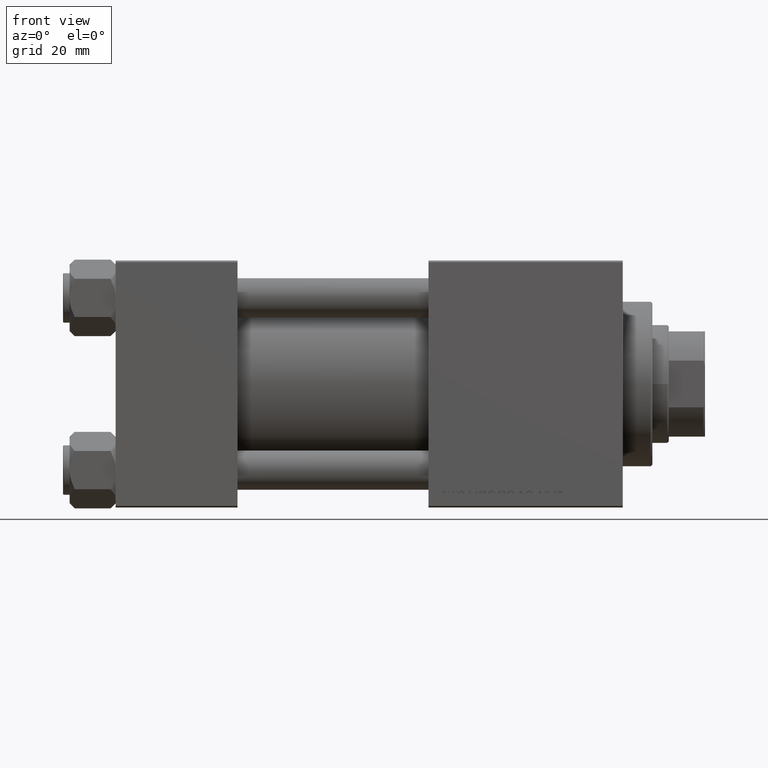
[diagram: clean part render]
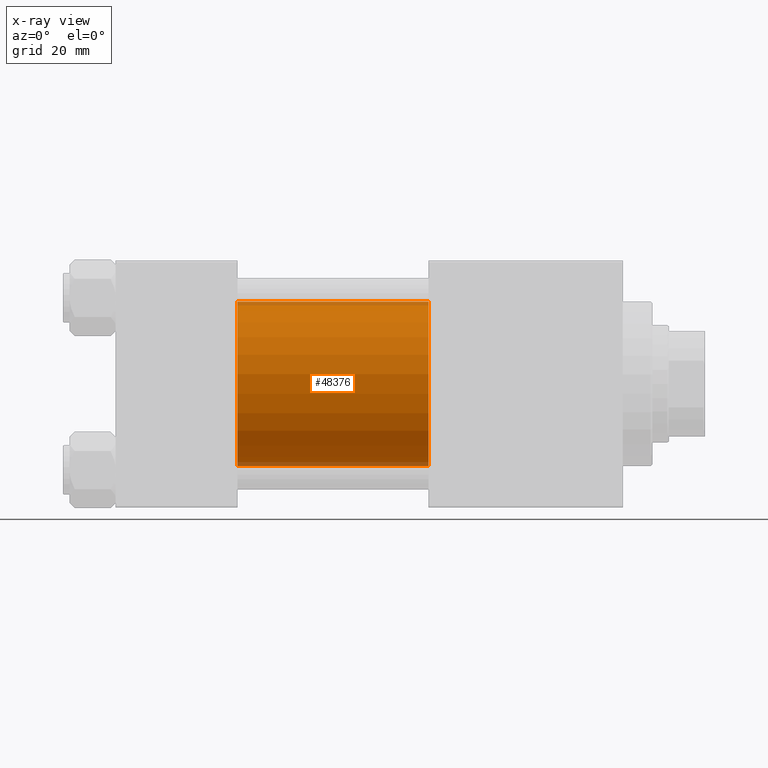
[diagram: x-ray — body ghosted, one internal face saturated and labeled with its STEP entity id]
A machine part, front view, then the same camera in x-ray: the body is ghosted and one INTERNAL B-rep face — a face not visible from any outside direction — is saturated and labeled: STEP entity #48376.
In plain terms, the highlighted cylindrical surface (partial cylindrical patch) has radius 25 mm, axis along (-1, -0, -0).
Its self-contained STEP definition (entity closure, byte-faithful):
#3774 = VERTEX_POINT ( 'NONE', #34643 ) ;
#4678 = CARTESIAN_POINT ( 'NONE',  ( 95.00000000000000000, -2.602085213965210642E-15, 25.00000000000000000 ) ) ;
#5175 = ORIENTED_EDGE ( 'NONE', *, *, #45337, .F. ) ;
#5684 = EDGE_CURVE ( 'NONE', #9237, #39553, #9038, .T. ) ;
#5708 = EDGE_CURVE ( 'NONE', #39553, #50463, #44496, .T. ) ;
#7304 = CARTESIAN_POINT ( 'NONE',  ( 95.00000000000000000, -2.602085213965210642E-15, 25.00000000000000000 ) ) ;
#8262 = VECTOR ( 'NONE', #22330, 1000.000000000000000 ) ;
#9038 = CIRCLE ( 'NONE', #24514, 25.00000000000000000 ) ;
#9237 = VERTEX_POINT ( 'NONE', #4678 ) ;
#10378 = DIRECTION ( 'NONE',  ( -1.000000000000000000, -0.000000000000000000, -0.000000000000000000 ) ) ;
#11266 = CARTESIAN_POINT ( 'NONE',  ( 37.00000000000000000, -2.602085213965210642E-15, 0.000000000000000000 ) ) ;
#13408 = DIRECTION ( 'NONE',  ( 0.000000000000000000, 0.000000000000000000, -1.000000000000000000 ) ) ;
#14614 = CIRCLE ( 'NONE', #22780, 25.00000000000000000 ) ;
#17475 = DIRECTION ( 'NONE',  ( 0.000000000000000000, 0.000000000000000000, 1.000000000000000000 ) ) ;
#18236 = FACE_OUTER_BOUND ( 'NONE', #25180, .T. ) ;
#21290 = CARTESIAN_POINT ( 'NONE',  ( 95.00000000000000000, -2.602085213965210642E-15, 0.000000000000000000 ) ) ;
#22235 = DIRECTION ( 'NONE',  ( 0.000000000000000000, 0.000000000000000000, -1.000000000000000000 ) ) ;
#22330 = DIRECTION ( 'NONE',  ( -1.000000000000000000, -0.000000000000000000, -0.000000000000000000 ) ) ;
#22780 = AXIS2_PLACEMENT_3D ( 'NONE', #11266, #42094, #22235 ) ;
#24514 = AXIS2_PLACEMENT_3D ( 'NONE', #44749, #36865, #13408 ) ;
#25180 = EDGE_LOOP ( 'NONE', ( #27212, #41358, #40916, #5175 ) ) ;
#27212 = ORIENTED_EDGE ( 'NONE', *, *, #5684, .T. ) ;
#31085 = CARTESIAN_POINT ( 'NONE',  ( 37.00000000000000000, 4.595317839031718093E-16, -25.00000000000000000 ) ) ;
#33323 = AXIS2_PLACEMENT_3D ( 'NONE', #21290, #49077, #17475 ) ;
#34643 = CARTESIAN_POINT ( 'NONE',  ( 37.00000000000000000, -2.602085213965210642E-15, 25.00000000000000000 ) ) ;
#36843 = CYLINDRICAL_SURFACE ( 'NONE', #33323, 25.00000000000000000 ) ;
#36865 = DIRECTION ( 'NONE',  ( 1.000000000000000000, 0.000000000000000000, 0.000000000000000000 ) ) ;
#39553 = VERTEX_POINT ( 'NONE', #45430 ) ;
#40916 = ORIENTED_EDGE ( 'NONE', *, *, #44782, .F. ) ;
#41358 = ORIENTED_EDGE ( 'NONE', *, *, #5708, .T. ) ;
#42094 = DIRECTION ( 'NONE',  ( 1.000000000000000000, 0.000000000000000000, 0.000000000000000000 ) ) ;
#44496 = LINE ( 'NONE', #49352, #8262 ) ;
#44749 = CARTESIAN_POINT ( 'NONE',  ( 95.00000000000000000, -2.602085213965210642E-15, 0.000000000000000000 ) ) ;
#44782 = EDGE_CURVE ( 'NONE', #3774, #50463, #14614, .T. ) ;
#45337 = EDGE_CURVE ( 'NONE', #9237, #3774, #45812, .T. ) ;
#45430 = CARTESIAN_POINT ( 'NONE',  ( 95.00000000000000000, 4.595317839031718093E-16, -25.00000000000000000 ) ) ;
#45812 = LINE ( 'NONE', #7304, #46352 ) ;
#46352 = VECTOR ( 'NONE', #10378, 1000.000000000000000 ) ;
#48376 = ADVANCED_FACE ( 'NONE', ( #18236 ), #36843, .F. ) ;
#49077 = DIRECTION ( 'NONE',  ( -1.000000000000000000, -0.000000000000000000, -0.000000000000000000 ) ) ;
#49352 = CARTESIAN_POINT ( 'NONE',  ( 95.00000000000000000, 4.595317839031718093E-16, -25.00000000000000000 ) ) ;
#50463 = VERTEX_POINT ( 'NONE', #31085 ) ;